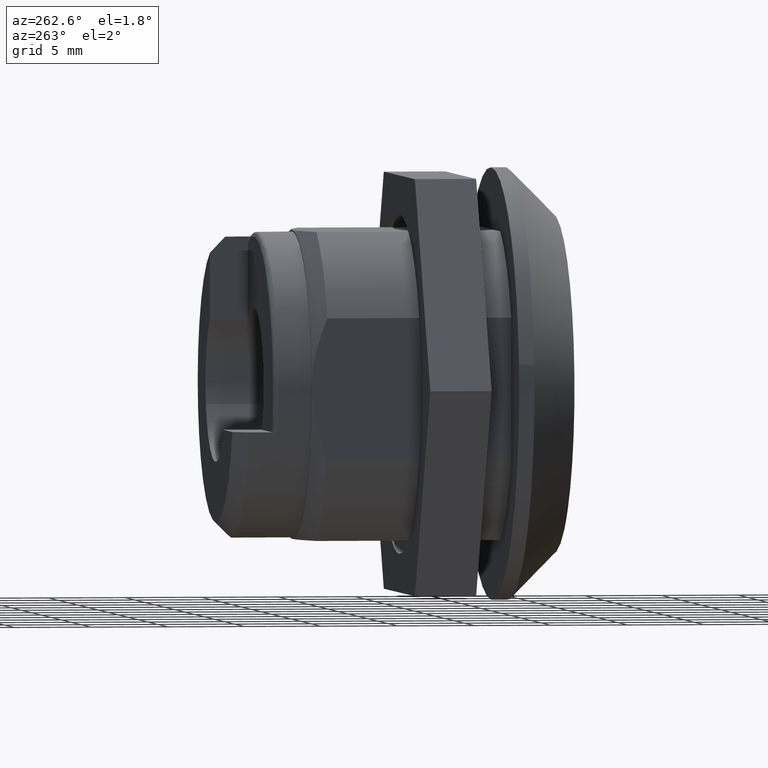
[diagram: clean part render]
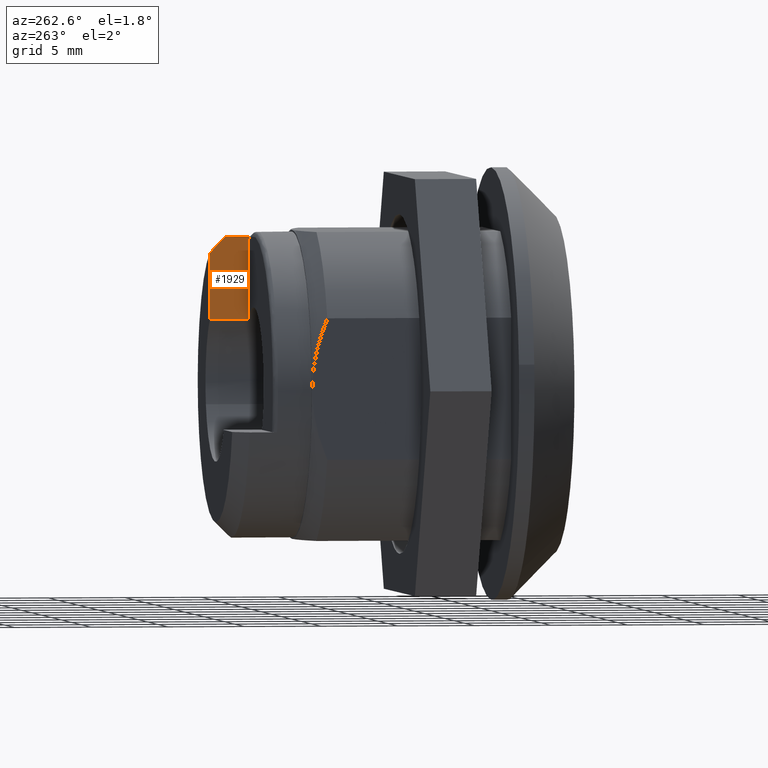
[diagram: same view with one face highlighted and labeled with its STEP entity id]
A machine part, auxiliary view. The second image highlights one B-rep face of the part: STEP entity #1929.
In plain terms, the highlighted face is a freeform B-spline surface patch.
Its self-contained STEP definition (entity closure, byte-faithful):
#818=CARTESIAN_POINT('',(17.000000854953999,-2.800000132992805,9.495788991215560));
#819=VERTEX_POINT('',#818);
#835=CARTESIAN_POINT('',(15.200000733949350,-2.800000132992805,9.495788991215560));
#836=VERTEX_POINT('',#835);
#837=CARTESIAN_POINT('',(17.000000854953999,-2.800000132992805,9.495788991215560));
#838=CARTESIAN_POINT('',(15.200000733949350,-2.800000132992805,9.495788991215560));
#839=QUASI_UNIFORM_CURVE('',1,(#837,#838),.UNSPECIFIED.,.F.,.U.);
#840=EDGE_CURVE('',#819,#836,#839,.T.);
#1341=CARTESIAN_POINT('',(15.500000733949300,-2.800000132992805,4.142463232198065));
#1342=VERTEX_POINT('',#1341);
#1358=CARTESIAN_POINT('',(18.000000854953999,-2.800000132992805,4.142463232198065));
#1359=VERTEX_POINT('',#1358);
#1360=CARTESIAN_POINT('',(18.000000854953999,-2.800000132992805,4.142463232198065));
#1361=CARTESIAN_POINT('',(15.500000733949300,-2.800000132992805,4.142463232198065));
#1362=QUASI_UNIFORM_CURVE('',1,(#1360,#1361),.UNSPECIFIED.,.F.,.U.);
#1363=EDGE_CURVE('',#1359,#1342,#1362,.T.);
#1786=CARTESIAN_POINT('',(15.500000733949300,-2.800000132992805,9.182592677645880));
#1787=VERTEX_POINT('',#1786);
#1788=CARTESIAN_POINT('',(15.500000733949300,-2.800000132992805,9.182592677645880));
#1789=CARTESIAN_POINT('',(15.500000733949300,-2.800000132992806,9.202837013141282));
#1790=CARTESIAN_POINT('',(15.498143395668460,-2.800000132992805,9.222767728444838));
#1791=CARTESIAN_POINT('',(15.490843744484920,-2.800000132992804,9.262023819442979));
#1792=CARTESIAN_POINT('',(15.485335669949560,-2.800000132992805,9.281510881156402));
#1793=CARTESIAN_POINT('',(15.470769266279220,-2.800000132992804,9.319063077737329));
#1794=CARTESIAN_POINT('',(15.461830186842020,-2.800000132992805,9.336918619777029));
#1795=CARTESIAN_POINT('',(15.440652551843030,-2.800000132992804,9.370795417694819));
#1796=CARTESIAN_POINT('',(15.428242476042319,-2.800000132992805,9.386978247467384));
#1797=CARTESIAN_POINT('',(15.400821116538960,-2.800000132992804,9.416248254381891));
#1798=CARTESIAN_POINT('',(15.385828860839309,-2.800000132992805,9.429404842623818));
#1799=CARTESIAN_POINT('',(15.353225684866249,-2.800000132992804,9.452697149719636));
#1800=CARTESIAN_POINT('',(15.335489625563760,-2.800000132992805,9.462836504695728));
#1801=CARTESIAN_POINT('',(15.298935443916140,-2.800000132992804,9.479015497963269));
#1802=CARTESIAN_POINT('',(15.279940905927729,-2.800000132992805,9.485211479967452));
#1803=CARTESIAN_POINT('',(15.240451719089659,-2.800000132992805,9.493644292693404));
#1804=CARTESIAN_POINT('',(15.220271679869921,-2.800000132992806,9.495788991215713));
#1805=CARTESIAN_POINT('',(15.200000733949350,-2.800000132992805,9.495788991215560));
#1806=B_SPLINE_CURVE_WITH_KNOTS('',3,(#1788,#1789,#1790,#1791,#1792,#1793,#1794,#1795,#1796,#1797,#1798,#1799,#1800,#1801,#1802,#1803,#1804,#1805),.UNSPECIFIED.,.F.,.U.,(4,2,2,2,2,2,2,2,4),(0.0,0.125000000000000,0.250000000000000,0.375000000000000,0.500000000000000,0.625000000000000,0.750000000000000,0.875000000000000,1.0),.UNSPECIFIED.);
#1807=EDGE_CURVE('',#1787,#836,#1806,.T.);
#1849=CARTESIAN_POINT('',(18.000000854953999,-2.800000132992805,8.448077155497641));
#1850=VERTEX_POINT('',#1849);
#1851=CARTESIAN_POINT('',(17.000000854953999,-2.800000132992805,9.495788991215560));
#1852=CARTESIAN_POINT('',(17.334192862514861,-2.800000132992805,9.147371283633966));
#1853=CARTESIAN_POINT('',(17.667627434545050,-2.800000132992805,8.798230633440820));
#1854=CARTESIAN_POINT('',(18.000000854953999,-2.800000132992805,8.448077155497641));
#1855=QUASI_UNIFORM_CURVE('',3,(#1851,#1852,#1853,#1854),.UNSPECIFIED.,.F.,.U.);
#1856=EDGE_CURVE('',#819,#1850,#1855,.T.);
#1895=CARTESIAN_POINT('',(18.000000854953999,-2.800000132992805,8.448077155497641));
#1896=CARTESIAN_POINT('',(18.000000854953999,-2.800000132992805,4.142463232198065));
#1897=QUASI_UNIFORM_CURVE('',1,(#1895,#1896),.UNSPECIFIED.,.F.,.U.);
#1898=EDGE_CURVE('',#1850,#1359,#1897,.T.);
#1912=CARTESIAN_POINT('',(15.060140809634341,-2.800000132992805,3.875064589783573));
#1913=CARTESIAN_POINT('',(15.060140809634341,-2.800000132992805,9.763187346455283));
#1914=CARTESIAN_POINT('',(18.139859878046739,-2.800000132992805,3.875064589783573));
#1915=CARTESIAN_POINT('',(18.139859878046739,-2.800000132992805,9.763187346455283));
#1916=B_SPLINE_SURFACE_WITH_KNOTS('',1,1,((#1912,#1914),(#1913,#1915)),.UNSPECIFIED.,.F.,.F.,.U.,(2,2),(2,2),(0.0,5.888122756671709),(0.0,3.079719068412395),.UNSPECIFIED.);
#1917=ORIENTED_EDGE('',*,*,#840,.F.);
#1918=ORIENTED_EDGE('',*,*,#1856,.T.);
#1919=ORIENTED_EDGE('',*,*,#1898,.T.);
#1920=ORIENTED_EDGE('',*,*,#1363,.T.);
#1921=CARTESIAN_POINT('',(15.500000733949300,-2.800000132992805,9.182592677645880));
#1922=CARTESIAN_POINT('',(15.500000733949300,-2.800000132992805,4.142463232198065));
#1923=QUASI_UNIFORM_CURVE('',1,(#1921,#1922),.UNSPECIFIED.,.F.,.U.);
#1924=EDGE_CURVE('',#1787,#1342,#1923,.T.);
#1925=ORIENTED_EDGE('',*,*,#1924,.F.);
#1926=ORIENTED_EDGE('',*,*,#1807,.T.);
#1927=EDGE_LOOP('',(#1917,#1918,#1919,#1920,#1925,#1926));
#1928=FACE_OUTER_BOUND('',#1927,.T.);
#1929=ADVANCED_FACE('',(#1928),#1916,.T.);